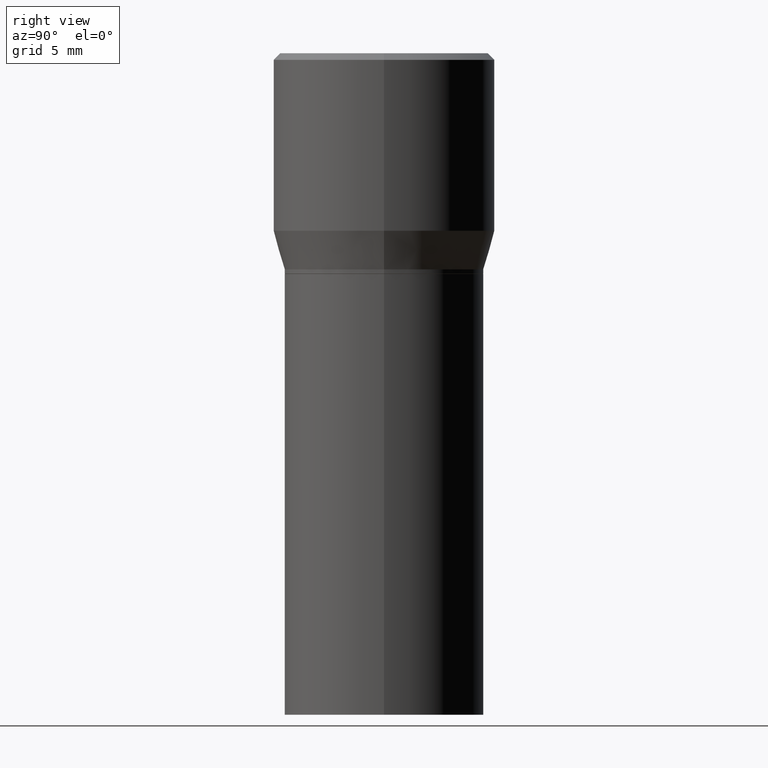
[diagram: clean part render]
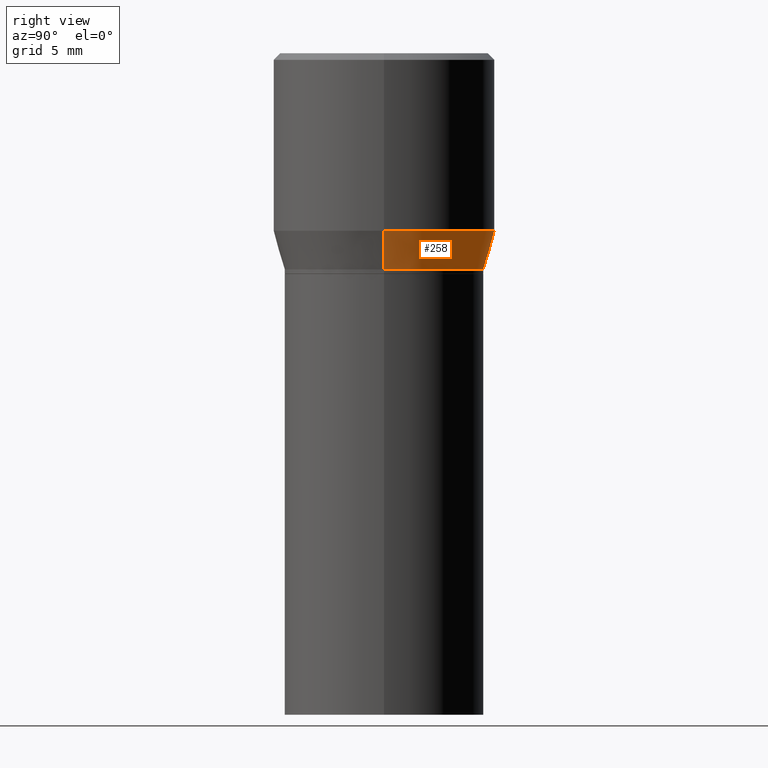
[diagram: same view with one face highlighted and labeled with its STEP entity id]
A machine part, right view. The second image highlights one B-rep face of the part: STEP entity #258.
In plain terms, the highlighted conical surface has half-angle 15 deg.
Its self-contained STEP definition (entity closure, byte-faithful):
#25 = DIRECTION ( 'NONE',  ( 1.000000000000000000, -6.982962677686265922E-15, 0.000000000000000000 ) ) ;
#46 = ORIENTED_EDGE ( 'NONE', *, *, #69, .T. ) ;
#47 = CIRCLE ( 'NONE', #375, 0.2500000000000000000 ) ;
#55 = EDGE_CURVE ( 'NONE', #431, #81, #47, .T. ) ;
#67 = DIRECTION ( 'NONE',  ( 1.000000000000000000, -6.982962677686265922E-15, 0.000000000000000000 ) ) ;
#69 = EDGE_CURVE ( 'NONE', #86, #310, #227, .T. ) ;
#81 = VERTEX_POINT ( 'NONE', #200 ) ;
#86 = VERTEX_POINT ( 'NONE', #425 ) ;
#92 = CARTESIAN_POINT ( 'NONE',  ( -0.2265499999999999736, 1.350011205208151600E-16, -0.4900000000000001021 ) ) ;
#110 = DIRECTION ( 'NONE',  ( 0.2588190451025214611, 1.565188264969621573E-15, 0.9659258262890682012 ) ) ;
#120 = ORIENTED_EDGE ( 'NONE', *, *, #142, .T. ) ;
#130 = DIRECTION ( 'NONE',  ( -2.445468806185136597E-29, 3.491481338843145583E-15, 1.000000000000000000 ) ) ;
#138 = DIRECTION ( 'NONE',  ( -2.445468806185136597E-29, 3.491481338843145583E-15, 1.000000000000000000 ) ) ;
#142 = EDGE_CURVE ( 'NONE', #310, #81, #144, .T. ) ;
#143 = FACE_OUTER_BOUND ( 'NONE', #229, .T. ) ;
#144 = LINE ( 'NONE', #436, #243 ) ;
#172 = LINE ( 'NONE', #432, #235 ) ;
#184 = EDGE_CURVE ( 'NONE', #86, #431, #172, .T. ) ;
#200 = CARTESIAN_POINT ( 'NONE',  ( -0.2500000000000000000, 3.710935292102651716E-16, -0.4024834085625100810 ) ) ;
#213 = CONICAL_SURFACE ( 'NONE', #359, 0.2265499999999999736, 0.2617993877991501295 ) ;
#227 = CIRCLE ( 'NONE', #299, 0.2265499999999999736 ) ;
#229 = EDGE_LOOP ( 'NONE', ( #46, #120, #309, #447 ) ) ;
#235 = VECTOR ( 'NONE', #110, 39.37007874015747433 ) ;
#243 = VECTOR ( 'NONE', #360, 39.37007874015747433 ) ;
#258 = ADVANCED_FACE ( 'NONE', ( #143 ), #213, .T. ) ;
#289 = CARTESIAN_POINT ( 'NONE',  ( 9.842606206466859638E-30, -1.405263310189985589E-15, -0.4024834085625100810 ) ) ;
#299 = AXIS2_PLACEMENT_3D ( 'NONE', #421, #130, #386 ) ;
#309 = ORIENTED_EDGE ( 'NONE', *, *, #55, .F. ) ;
#310 = VERTEX_POINT ( 'NONE', #92 ) ;
#323 = CARTESIAN_POINT ( 'NONE',  ( 0.2500000000000000000, -3.151003979611552069E-15, -0.4024834085625100810 ) ) ;
#359 = AXIS2_PLACEMENT_3D ( 'NONE', #429, #397, #67 ) ;
#360 = DIRECTION ( 'NONE',  ( -0.2588190451025214611, 5.211531920934551042E-15, 0.9659258262890682012 ) ) ;
#375 = AXIS2_PLACEMENT_3D ( 'NONE', #289, #138, #25 ) ;
#386 = DIRECTION ( 'NONE',  ( 1.000000000000000000, -6.982962677686265922E-15, 0.000000000000000000 ) ) ;
#397 = DIRECTION ( 'NONE',  ( -2.445468806185136597E-29, 3.491481338843145583E-15, 1.000000000000000000 ) ) ;
#421 = CARTESIAN_POINT ( 'NONE',  ( 1.198279715030717173E-29, -1.710825856033141537E-15, -0.4900000000000001021 ) ) ;
#425 = CARTESIAN_POINT ( 'NONE',  ( 0.2265499999999999736, -3.292816050662964671E-15, -0.4900000000000001021 ) ) ;
#429 = CARTESIAN_POINT ( 'NONE',  ( 1.198279715030717173E-29, -1.710825856033141537E-15, -0.4900000000000001021 ) ) ;
#431 = VERTEX_POINT ( 'NONE', #323 ) ;
#432 = CARTESIAN_POINT ( 'NONE',  ( 0.2265499999999999736, -3.292816050662964671E-15, -0.4900000000000001021 ) ) ;
#436 = CARTESIAN_POINT ( 'NONE',  ( -0.2265499999999999736, -1.010912881686348269E-16, -0.4900000000000001021 ) ) ;
#447 = ORIENTED_EDGE ( 'NONE', *, *, #184, .F. ) ;